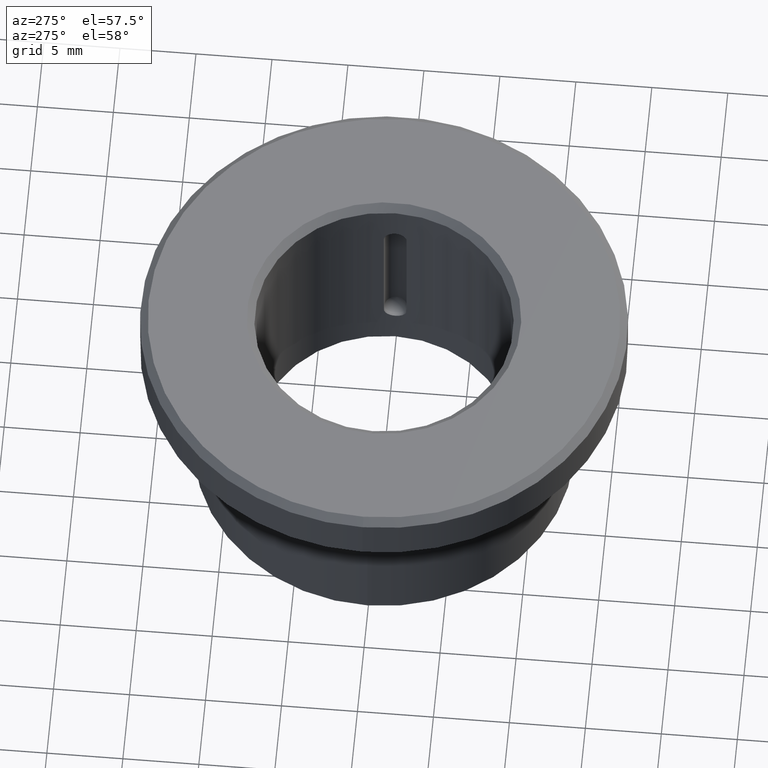
[diagram: clean part render]
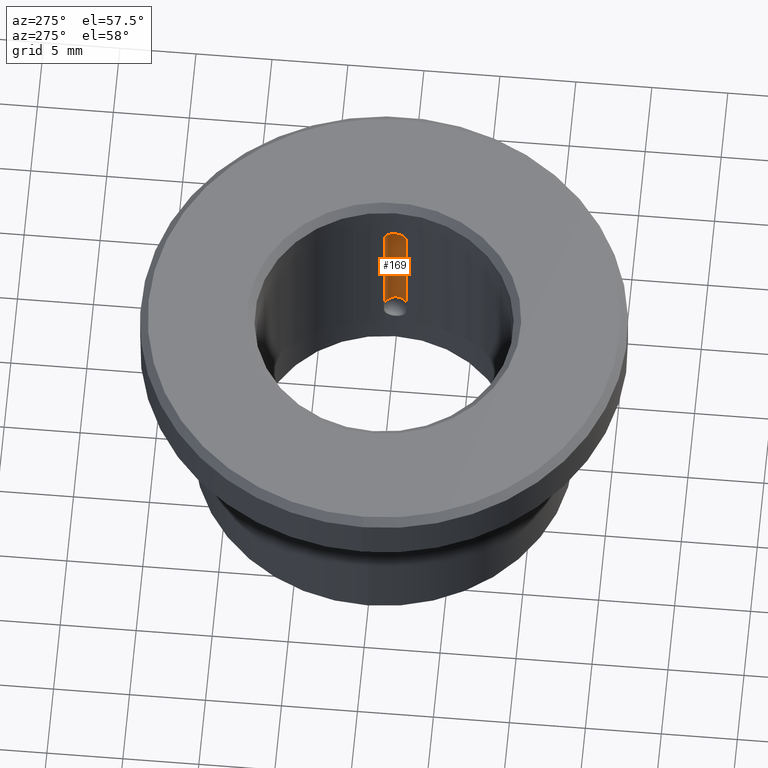
[diagram: same view with one face highlighted and labeled with its STEP entity id]
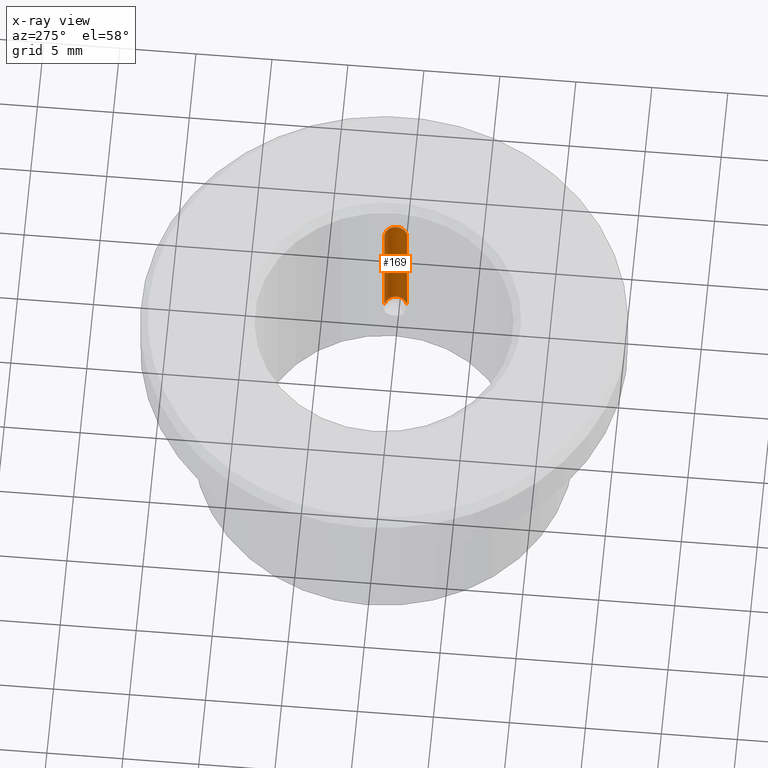
[diagram: x-ray of the same camera — body ghosted, the highlighted face saturated]
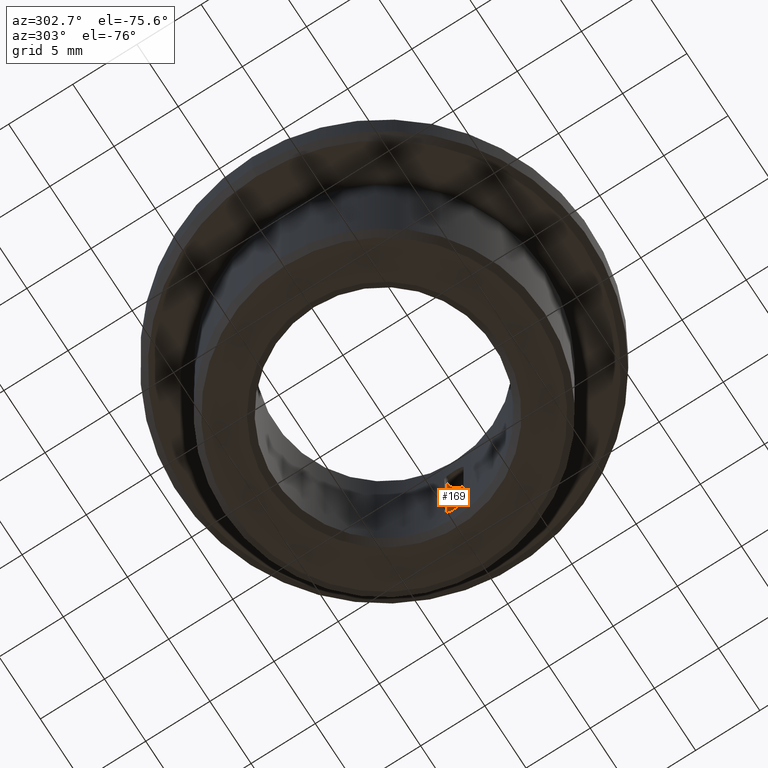
[diagram: same view with one face highlighted and labeled with its STEP entity id]
A machine part, auxiliary view. The second image highlights one B-rep face of the part: STEP entity #169.
The next image is the same camera in x-ray: the body ghosted, the highlighted face saturated — about 0% of this face is hidden behind the body in this view.
A second angle (auxiliary view) of the same face is appended — the face is thin or edge-on in the first view.
In plain terms, the highlighted cylindrical surface (edge-blend (fillet) strip) has radius 0.75 mm, axis along (-0, 0, -1).
Its self-contained STEP definition (entity closure, byte-faithful):
#169=ADVANCED_FACE('',(#217),#218,.F.);
#217=FACE_OUTER_BOUND('',#266,.T.);
#218=CYLINDRICAL_SURFACE('',#267,0.00075);
#266=EDGE_LOOP('',(#362,#363,#364,#365));
#267=AXIS2_PLACEMENT_3D('',#366,#367,#368);
#362=ORIENTED_EDGE('',*,*,#379,.F.);
#363=ORIENTED_EDGE('',*,*,#398,.T.);
#364=ORIENTED_EDGE('',*,*,#396,.F.);
#365=ORIENTED_EDGE('',*,*,#397,.F.);
#366=CARTESIAN_POINT('',(6.9931040125315E-017,-0.0087500000000002,0.01225));
#367=DIRECTION('',(1.020425574104E-016,0.0,-1.0));
#368=DIRECTION('',(-1.0,0.0,-1.020425574104E-016));
#379=EDGE_CURVE('',#407,#399,#410,.T.);
#396=EDGE_CURVE('',#402,#412,#440,.T.);
#397=EDGE_CURVE('',#399,#402,#441,.T.);
#398=EDGE_CURVE('',#407,#412,#442,.T.);
#399=VERTEX_POINT('',#443);
#402=VERTEX_POINT('',#447);
#407=VERTEX_POINT('',#466);
#410=LINE('',#470,#471);
#412=VERTEX_POINT('',#474);
#440=LINE('',#517,#518);
#441=CIRCLE('',#519,0.00075);
#442=CIRCLE('',#520,0.00075);
#443=CARTESIAN_POINT('',(-0.000749999999999929,-0.0087500000000002,0.00375));
#447=CARTESIAN_POINT('',(0.000750000000000071,-0.0087500000000002,0.00375));
#466=CARTESIAN_POINT('',(-0.00074999999999993,-0.0087500000000002,0.01225));
#470=CARTESIAN_POINT('',(-0.00074999999999993,-0.0087500000000002,0.01225));
#471=VECTOR('',#527,1.0);
#474=CARTESIAN_POINT('',(0.000750000000000071,-0.0087500000000002,0.01225));
#517=CARTESIAN_POINT('',(0.000750000000000071,-0.0087500000000002,0.00375));
#518=VECTOR('',#567,1.0);
#519=AXIS2_PLACEMENT_3D('',#568,#569,#570);
#520=AXIS2_PLACEMENT_3D('',#571,#572,#573);
#527=DIRECTION('',(1.020425574104E-016,0.0,-1.0));
#567=DIRECTION('',(0.0,0.0,1.0));
#568=CARTESIAN_POINT('',(7.07984018633034E-017,-0.0087500000000002,0.00375));
#569=DIRECTION('',(0.0,-2.31296463463574E-015,1.0));
#570=DIRECTION('',(0.0,-1.0,-2.31296463463574E-015));
#571=CARTESIAN_POINT('',(6.9931040125315E-017,-0.0087500000000002,0.01225));
#572=DIRECTION('',(0.0,0.0,1.0));
#573=DIRECTION('',(1.0,0.0,0.0));